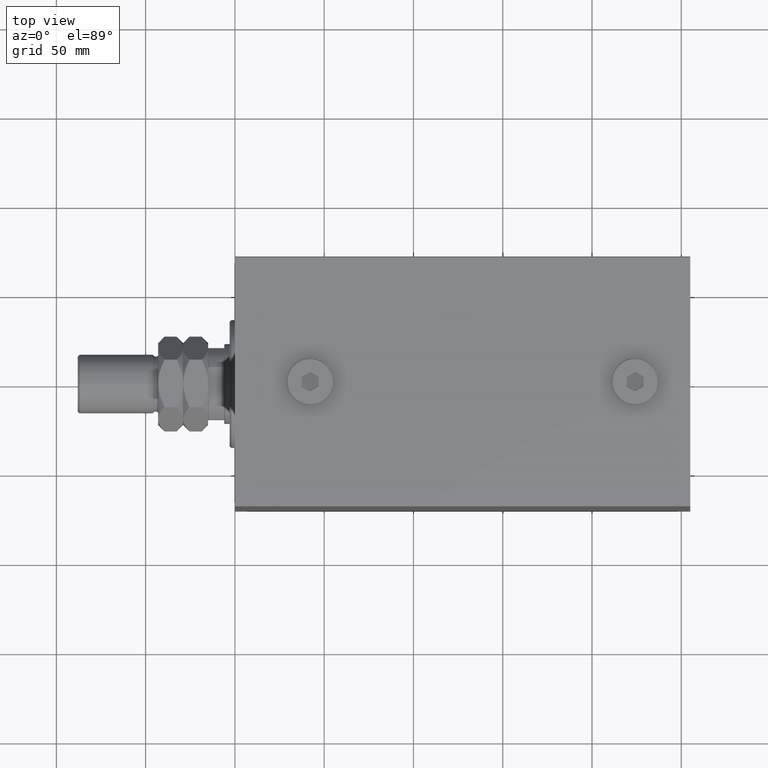
[diagram: clean part render]
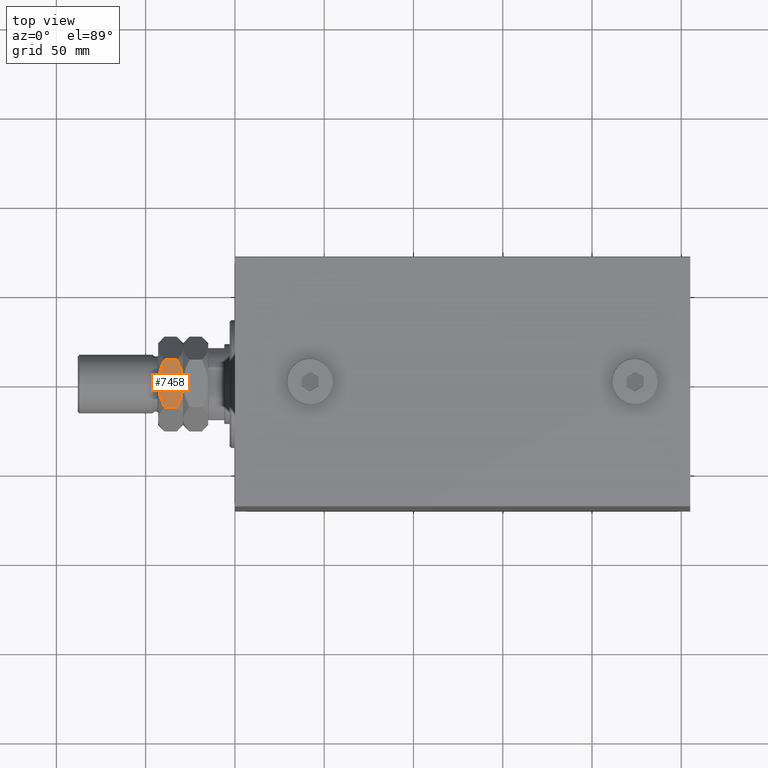
[diagram: same view with one face highlighted and labeled with its STEP entity id]
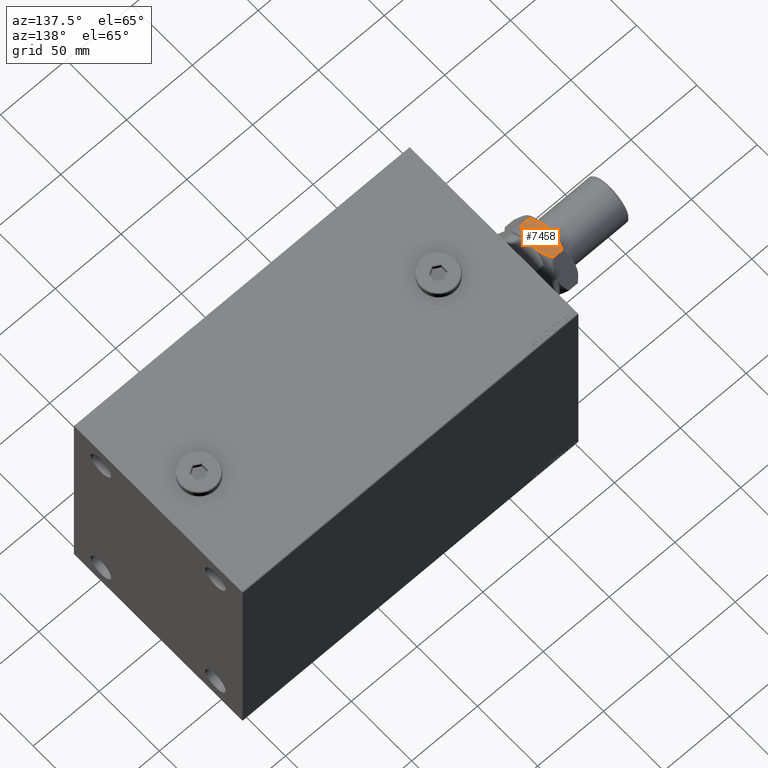
[diagram: same view with one face highlighted and labeled with its STEP entity id]
A machine part, top view. The second image highlights one B-rep face of the part: STEP entity #7458.
A second angle (auxiliary view) of the same face is appended — the face is thin or edge-on in the first view.
In plain terms, the highlighted planar face has unit normal (0, 0, -1).
Its self-contained STEP definition (entity closure, byte-faithful):
#7 = CARTESIAN_POINT ( 'NONE',  ( 23.00000000000000355, 9.038140464506014382, 15.70670540628181477 ) ) ;
#310 = CARTESIAN_POINT ( 'NONE',  ( 23.00000000000000000, -13.27905619136138959, 28.00000000000000000 ) ) ;
#586 = CARTESIAN_POINT ( 'NONE',  ( 22.99999999999999645, 0.000000000000000000, 14.00000000000000000 ) ) ;
#1019 = FACE_OUTER_BOUND ( 'NONE', #25816, .T. ) ;
#2059 = DIRECTION ( 'NONE',  ( -0.000000000000000000, -0.000000000000000000, -1.000000000000000000 ) ) ;
#2719 = CARTESIAN_POINT ( 'NONE',  ( 23.00000000000000000, 5.732845801352522308, 27.32003707801577619 ) ) ;
#2796 = CARTESIAN_POINT ( 'NONE',  ( 22.99999999999999645, 0.000000000000000000, 28.00000000000000000 ) ) ;
#3272 = CARTESIAN_POINT ( 'NONE',  ( 23.00000000000000711, -4.604003285773378806, 27.64082713328069119 ) ) ;
#4146 = DIRECTION ( 'NONE',  ( -1.000000000000000000, 0.000000000000000000, 0.000000000000000000 ) ) ;
#4190 = CARTESIAN_POINT ( 'NONE',  ( 23.00000000000001066, -0.5819124658698887620, 14.00000000000000711 ) ) ;
#4261 = VERTEX_POINT ( 'NONE', #19795 ) ;
#4423 = CARTESIAN_POINT ( 'NONE',  ( 23.00000000000000711, -12.24912306375521531, 17.04314581891969382 ) ) ;
#5439 = CARTESIAN_POINT ( 'NONE',  ( 23.00000000000000000, -13.27905619136138959, 24.44188761727722792 ) ) ;
#5612 = ORIENTED_EDGE ( 'NONE', *, *, #13645, .F. ) ;
#6286 = VERTEX_POINT ( 'NONE', #27003 ) ;
#6709 = EDGE_CURVE ( 'NONE', #26286, #6857, #20475, .T. ) ;
#6857 = VERTEX_POINT ( 'NONE', #21410 ) ;
#6947 = CARTESIAN_POINT ( 'NONE',  ( 23.00000000000000000, 13.27905619136138959, 17.55811238272277564 ) ) ;
#7302 = CARTESIAN_POINT ( 'NONE',  ( 22.99999999999999289, -9.585014738077486385, 26.08755915768734468 ) ) ;
#7458 = ADVANCED_FACE ( 'NONE', ( #1019 ), #15838, .F. ) ;
#7761 = CARTESIAN_POINT ( 'NONE',  ( 23.00000000000000000, -2.327345773459499334, 14.11023447772089945 ) ) ;
#7989 = CARTESIAN_POINT ( 'NONE',  ( 23.00000000000000355, -2.901718448039537712, 14.17547147104708571 ) ) ;
#8230 = CARTESIAN_POINT ( 'NONE',  ( 23.00000000000000355, -11.19584287463890959, 16.56112058300224632 ) ) ;
#10181 = VECTOR ( 'NONE', #25947, 1000.000000000000000 ) ;
#10815 = CARTESIAN_POINT ( 'NONE',  ( 23.00000000000000000, 13.27905619136138959, 24.44188761727722436 ) ) ;
#12080 = B_SPLINE_CURVE_WITH_KNOTS ( 'NONE', 3,
 ( #586, #4190, #29312, #7761, #7989, #30017, #22598, #26190, #40582, #8230, #4423, #33617 ),
 .UNSPECIFIED., .F., .F.,
 ( 4, 2, 2, 2, 2, 4 ),
 ( 0.04777139595992687532, 0.04949914554651194121, 0.05122689513309700016, 0.05468239430626712499, 0.05813789347943724983, 0.06159339265260737467 ),
 .UNSPECIFIED. ) ;
#12707 = CARTESIAN_POINT ( 'NONE',  ( 23.00000000000000000, 13.27905619136138959, 24.44188761727722436 ) ) ;
#13645 = EDGE_CURVE ( 'NONE', #4261, #14590, #26033, .T. ) ;
#14359 = CARTESIAN_POINT ( 'NONE',  ( 23.00000000000000355, 4.604003285773385024, 14.35917286671931059 ) ) ;
#14487 = CARTESIAN_POINT ( 'NONE',  ( 22.99999999999999645, -11.20010744839417427, 25.43691701641144221 ) ) ;
#14590 = VERTEX_POINT ( 'NONE', #12707 ) ;
#14727 = CARTESIAN_POINT ( 'NONE',  ( 22.99999999999999645, -7.384104261058114460, 26.84961951312581618 ) ) ;
#14946 = LINE ( 'NONE', #29544, #10181 ) ;
#15838 = PLANE ( 'NONE',  #37369 ) ;
#17383 = CARTESIAN_POINT ( 'NONE',  ( 23.00000000000000000, -9.038140464506012606, 26.29329459371818345 ) ) ;
#17537 = CARTESIAN_POINT ( 'NONE',  ( 22.99999999999999645, 7.945847288453418145, 26.68926960916466129 ) ) ;
#17952 = CARTESIAN_POINT ( 'NONE',  ( 23.00000000000000355, 2.332866569036886606, 14.00000000000000355 ) ) ;
#17990 = CARTESIAN_POINT ( 'NONE',  ( 22.99999999999999289, 2.327345773459494005, 27.88976552227909878 ) ) ;
#18121 = ORIENTED_EDGE ( 'NONE', *, *, #30060, .F. ) ;
#18977 = VERTEX_POINT ( 'NONE', #27348 ) ;
#19795 = CARTESIAN_POINT ( 'NONE',  ( 22.99999999999999645, 0.000000000000000000, 28.00000000000000000 ) ) ;
#20475 = LINE ( 'NONE', #46139, #47263 ) ;
#20950 = CARTESIAN_POINT ( 'NONE',  ( 23.00000000000000000, -13.27905619136138959, 24.44188761727722792 ) ) ;
#21245 = EDGE_CURVE ( 'NONE', #18977, #6286, #41005, .T. ) ;
#21410 = CARTESIAN_POINT ( 'NONE',  ( 23.00000000000000000, -13.27905619136138782, 17.55811238272277564 ) ) ;
#22598 = CARTESIAN_POINT ( 'NONE',  ( 23.00000000000000711, -5.732845801352522308, 14.67996292198422736 ) ) ;
#23646 = EDGE_CURVE ( 'NONE', #14590, #18977, #14946, .T. ) ;
#24674 = CARTESIAN_POINT ( 'NONE',  ( 23.00000000000001066, 7.937214062685167271, 15.32555602763360092 ) ) ;
#25368 = CARTESIAN_POINT ( 'NONE',  ( 22.99999999999999289, 12.24963129209448276, 17.04339993308932222 ) ) ;
#25409 = CARTESIAN_POINT ( 'NONE',  ( 22.99999999999999645, 0.000000000000000000, 28.00000000000000000 ) ) ;
#25656 = DIRECTION ( 'NONE',  ( 0.000000000000000000, 0.000000000000000000, 1.000000000000000000 ) ) ;
#25816 = EDGE_LOOP ( 'NONE', ( #31410, #34994, #5612, #18121, #31571, #26667 ) ) ;
#25947 = DIRECTION ( 'NONE',  ( -0.000000000000000000, -0.000000000000000000, -1.000000000000000000 ) ) ;
#26033 = B_SPLINE_CURVE_WITH_KNOTS ( 'NONE', 3,
 ( #25409, #39117, #36206, #17990, #46558, #28075, #2719, #17537, #47239, #32136, #29000, #10815 ),
 .UNSPECIFIED., .F., .F.,
 ( 4, 2, 2, 2, 2, 4 ),
 ( 0.04777139595992686838, 0.04949914554651193427, 0.05122689513309699322, 0.05468239430626712499, 0.05813789347943724983, 0.06159339265260738161 ),
 .UNSPECIFIED. ) ;
#26190 = CARTESIAN_POINT ( 'NONE',  ( 23.00000000000000355, -7.945847288453419921, 15.31073039083534226 ) ) ;
#26286 = VERTEX_POINT ( 'NONE', #20950 ) ;
#26667 = ORIENTED_EDGE ( 'NONE', *, *, #39868, .F. ) ;
#27003 = CARTESIAN_POINT ( 'NONE',  ( 22.99999999999999645, 0.000000000000000000, 14.00000000000000000 ) ) ;
#27348 = CARTESIAN_POINT ( 'NONE',  ( 23.00000000000000000, 13.27905619136138959, 17.55811238272277564 ) ) ;
#28075 = CARTESIAN_POINT ( 'NONE',  ( 23.00000000000000355, 4.611258391204997586, 27.56938464817973511 ) ) ;
#28392 = CARTESIAN_POINT ( 'NONE',  ( 23.00000000000000000, -7.937214062685161942, 26.67444397236640086 ) ) ;
#29000 = CARTESIAN_POINT ( 'NONE',  ( 23.00000000000000711, 12.24912306375522242, 24.95685418108031328 ) ) ;
#29312 = CARTESIAN_POINT ( 'NONE',  ( 23.00000000000000000, -1.168850493887471087, 14.02243711562833184 ) ) ;
#29544 = CARTESIAN_POINT ( 'NONE',  ( 23.00000000000000000, 13.27905619136138959, 28.00000000000000000 ) ) ;
#30017 = CARTESIAN_POINT ( 'NONE',  ( 23.00000000000000355, -4.611258391204995810, 14.43061535182026667 ) ) ;
#30060 = EDGE_CURVE ( 'NONE', #26286, #4261, #35570, .T. ) ;
#31410 = ORIENTED_EDGE ( 'NONE', *, *, #21245, .F. ) ;
#31571 = ORIENTED_EDGE ( 'NONE', *, *, #6709, .T. ) ;
#32136 = CARTESIAN_POINT ( 'NONE',  ( 23.00000000000000355, 11.19584287463890782, 25.43887941699775368 ) ) ;
#32801 = CARTESIAN_POINT ( 'NONE',  ( 23.00000000000000000, 11.20010744839417782, 16.56308298358856135 ) ) ;
#33617 = CARTESIAN_POINT ( 'NONE',  ( 23.00000000000000000, -13.27905619136138782, 17.55811238272277564 ) ) ;
#34994 = ORIENTED_EDGE ( 'NONE', *, *, #23646, .F. ) ;
#35570 = B_SPLINE_CURVE_WITH_KNOTS ( 'NONE', 3,
 ( #5439, #45682, #14487, #7302, #17383, #28392, #14727, #3272, #43971, #2796 ),
 .UNSPECIFIED., .F., .F.,
 ( 4, 2, 2, 2, 4 ),
 ( 0.03391842154671734916, 0.03738166515001972723, 0.03911328695167091973, 0.04084490875332210530, 0.04777139595992686838 ),
 .UNSPECIFIED. ) ;
#35689 = CARTESIAN_POINT ( 'NONE',  ( 22.99999999999999645, 0.000000000000000000, 14.00000000000000000 ) ) ;
#36206 = CARTESIAN_POINT ( 'NONE',  ( 23.00000000000000000, 1.168850493887465758, 27.97756288437166461 ) ) ;
#36395 = CARTESIAN_POINT ( 'NONE',  ( 22.99999999999999289, 9.585014738077491714, 15.91244084231266420 ) ) ;
#37369 = AXIS2_PLACEMENT_3D ( 'NONE', #310, #4146, #25656 ) ;
#39117 = CARTESIAN_POINT ( 'NONE',  ( 23.00000000000000711, 0.5819124658698872077, 28.00000000000000000 ) ) ;
#39868 = EDGE_CURVE ( 'NONE', #6286, #6857, #12080, .T. ) ;
#40582 = CARTESIAN_POINT ( 'NONE',  ( 23.00000000000000355, -9.037287856520078932, 15.69203433471579778 ) ) ;
#41005 = B_SPLINE_CURVE_WITH_KNOTS ( 'NONE', 3,
 ( #6947, #25368, #32801, #36395, #7, #24674, #43606, #14359, #17952, #35689 ),
 .UNSPECIFIED., .F., .F.,
 ( 4, 2, 2, 2, 4 ),
 ( 0.03391842154671734916, 0.03738166515001972723, 0.03911328695167091973, 0.04084490875332210530, 0.04777139595992687532 ),
 .UNSPECIFIED. ) ;
#43606 = CARTESIAN_POINT ( 'NONE',  ( 23.00000000000000711, 7.384104261058126895, 15.15038048687418559 ) ) ;
#43971 = CARTESIAN_POINT ( 'NONE',  ( 23.00000000000000711, -2.332866569036887938, 27.99999999999999645 ) ) ;
#45682 = CARTESIAN_POINT ( 'NONE',  ( 23.00000000000000000, -12.24963129209447565, 24.95660006691067778 ) ) ;
#46139 = CARTESIAN_POINT ( 'NONE',  ( 23.00000000000000000, -13.27905619136138959, 28.00000000000000000 ) ) ;
#46558 = CARTESIAN_POINT ( 'NONE',  ( 23.00000000000000000, 2.901718448039539044, 27.82452852895291429 ) ) ;
#47239 = CARTESIAN_POINT ( 'NONE',  ( 23.00000000000000355, 9.037287856520077156, 26.30796566528420399 ) ) ;
#47263 = VECTOR ( 'NONE', #2059, 1000.000000000000000 ) ;